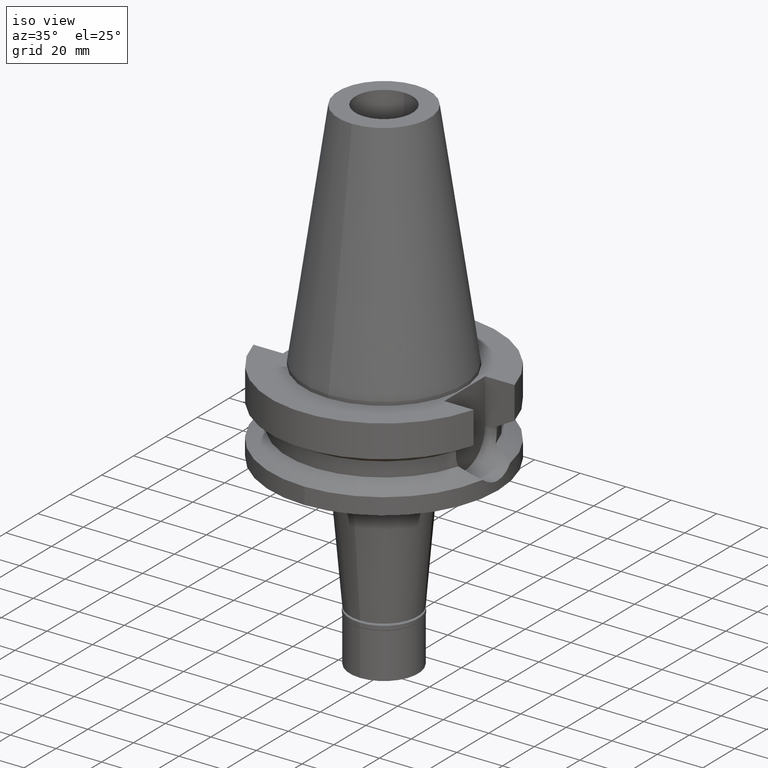
[diagram: clean part render]
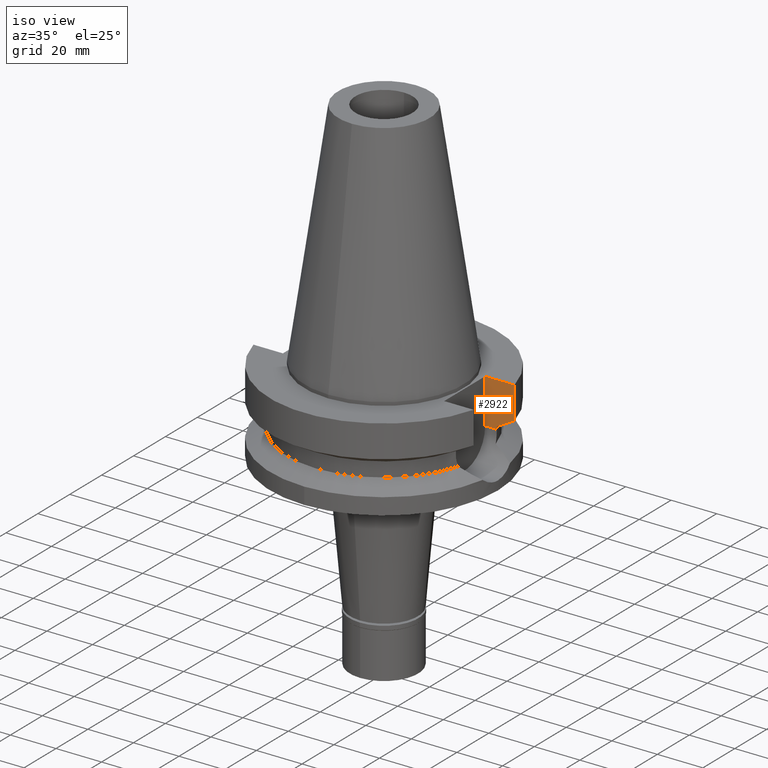
[diagram: same view with one face highlighted and labeled with its STEP entity id]
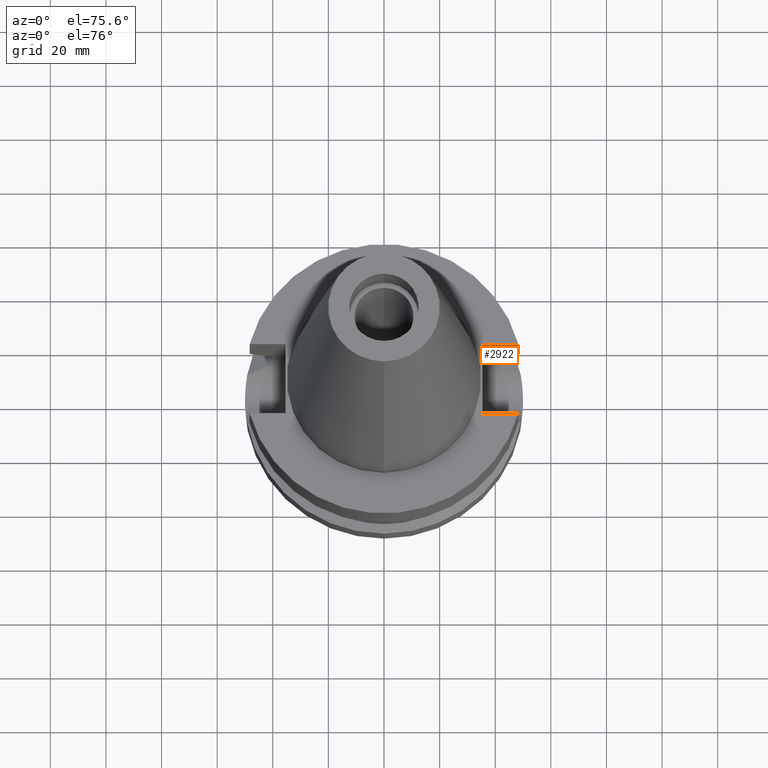
[diagram: same view with one face highlighted and labeled with its STEP entity id]
A machine part, iso view. The second image highlights one B-rep face of the part: STEP entity #2922.
A second angle (auxiliary view) of the same face is appended — the face is thin or edge-on in the first view.
In plain terms, the highlighted planar face has unit normal (0, 1, 0).
Its self-contained STEP definition (entity closure, byte-faithful):
#31 = CARTESIAN_POINT ( 'NONE',  ( 40.51083188481999997, 12.84999999999999964, -21.14999999999999858 ) ) ;
#74 = VERTEX_POINT ( 'NONE', #2476 ) ;
#91 = CARTESIAN_POINT ( 'NONE',  ( 42.90862464364228401, 12.84999310452902321, -18.67324794666005872 ) ) ;
#105 = VECTOR ( 'NONE', #1001, 1000.000000000000000 ) ;
#144 = PLANE ( 'NONE',  #1809 ) ;
#186 = CARTESIAN_POINT ( 'NONE',  ( 40.51083297732999711, 12.84999655576999977, -19.99284568674999818 ) ) ;
#316 = CARTESIAN_POINT ( 'NONE',  ( 40.51083297732999711, 12.84999655576999977, -19.99284568674999818 ) ) ;
#378 = VECTOR ( 'NONE', #1004, 1000.000000000000114 ) ;
#390 = DIRECTION ( 'NONE',  ( -0.0000000000000000000, 1.000000000000000000, 0.0000000000000000000 ) ) ;
#442 = EDGE_CURVE ( 'NONE', #599, #1636, #1991, .T. ) ;
#456 = EDGE_CURVE ( 'NONE', #1439, #3043, #2491, .T. ) ;
#502 = EDGE_CURVE ( 'NONE', #74, #599, #509, .T. ) ;
#509 = LINE ( 'NONE', #1741, #2362 ) ;
#592 = CARTESIAN_POINT ( 'NONE',  ( 40.51083188481999997, 12.84999999999999964, -21.14999999999999858 ) ) ;
#599 = VERTEX_POINT ( 'NONE', #592 ) ;
#618 = CARTESIAN_POINT ( 'NONE',  ( 35.39999999999999858, 12.84999999999999964, -1.500000000000000000 ) ) ;
#642 = ORIENTED_EDGE ( 'NONE', *, *, #442, .T. ) ;
#728 = VECTOR ( 'NONE', #3123, 1000.000000000000000 ) ;
#783 = CARTESIAN_POINT ( 'NONE',  ( 35.39999999999999858, 12.84999999999999964, -1.500000000000000000 ) ) ;
#818 = ORIENTED_EDGE ( 'NONE', *, *, #1733, .F. ) ;
#885 = CARTESIAN_POINT ( 'NONE',  ( 48.32057015392000210, 12.84999999999999964, -1.500000000000000000 ) ) ;
#912 = DIRECTION ( 'NONE',  ( 1.000000000000000000, 0.0000000000000000000, 0.0000000000000000000 ) ) ;
#1001 = DIRECTION ( 'NONE',  ( 1.000000000000000000, 0.0000000000000000000, 0.0000000000000000000 ) ) ;
#1004 = DIRECTION ( 'NONE',  ( 7.239176074897711142E-08, -2.722185896156890342E-07, 0.9999999999999603650 ) ) ;
#1024 = VECTOR ( 'NONE', #2959, 1000.000000000000114 ) ;
#1132 = CARTESIAN_POINT ( 'NONE',  ( 35.39999999999999858, 12.84999999999999964, -1.500000000000000000 ) ) ;
#1229 = ORIENTED_EDGE ( 'NONE', *, *, #456, .F. ) ;
#1439 = VERTEX_POINT ( 'NONE', #1132 ) ;
#1501 = EDGE_CURVE ( 'NONE', #1439, #74, #2862, .T. ) ;
#1505 = CARTESIAN_POINT ( 'NONE',  ( 45.51179877582139000, 12.85000770603029174, -17.22986719302744163 ) ) ;
#1636 = VERTEX_POINT ( 'NONE', #186 ) ;
#1726 = CARTESIAN_POINT ( 'NONE',  ( 48.32056912865999720, 12.85000385533999889, -15.66265769992000045 ) ) ;
#1733 = EDGE_CURVE ( 'NONE', #1936, #1636, #2619, .T. ) ;
#1741 = CARTESIAN_POINT ( 'NONE',  ( 35.39999999999999858, 12.84999999999999964, -21.14999999999999858 ) ) ;
#1809 = AXIS2_PLACEMENT_3D ( 'NONE', #2903, #390, #912 ) ;
#1936 = VERTEX_POINT ( 'NONE', #1964 ) ;
#1964 = CARTESIAN_POINT ( 'NONE',  ( 48.32056912865999720, 12.85000385533999889, -15.66265769992000045 ) ) ;
#1991 = LINE ( 'NONE', #31, #1024 ) ;
#2099 = ORIENTED_EDGE ( 'NONE', *, *, #3058, .T. ) ;
#2161 = LINE ( 'NONE', #2957, #378 ) ;
#2245 = ORIENTED_EDGE ( 'NONE', *, *, #502, .T. ) ;
#2362 = VECTOR ( 'NONE', #3158, 1000.000000000000000 ) ;
#2476 = CARTESIAN_POINT ( 'NONE',  ( 35.39999999999999858, 12.84999999999999964, -21.14999999999999858 ) ) ;
#2491 = LINE ( 'NONE', #783, #105 ) ;
#2619 = B_SPLINE_CURVE_WITH_KNOTS ( 'NONE', 3,
 ( #1726, #1505, #91, #316 ),
 .UNSPECIFIED., .F., .F.,
 ( 4, 4 ),
 ( 0.0000000000000000000, 1.000000000000000000 ),
 .UNSPECIFIED. ) ;
#2678 = ORIENTED_EDGE ( 'NONE', *, *, #1501, .T. ) ;
#2820 = EDGE_LOOP ( 'NONE', ( #818, #2099, #1229, #2678, #2245, #642 ) ) ;
#2862 = LINE ( 'NONE', #618, #728 ) ;
#2903 = CARTESIAN_POINT ( 'NONE',  ( 35.39999999999999858, 12.84999999999999964, -21.14999999999999858 ) ) ;
#2922 = ADVANCED_FACE ( 'NONE', ( #3103 ), #144, .F. ) ;
#2957 = CARTESIAN_POINT ( 'NONE',  ( 48.32056912865999720, 12.85000385533999889, -15.66265769992000045 ) ) ;
#2959 = DIRECTION ( 'NONE',  ( 9.441324481811226008E-07, -2.976468723670074156E-06, 0.9999999999951246776 ) ) ;
#3043 = VERTEX_POINT ( 'NONE', #885 ) ;
#3058 = EDGE_CURVE ( 'NONE', #1936, #3043, #2161, .T. ) ;
#3103 = FACE_OUTER_BOUND ( 'NONE', #2820, .T. ) ;
#3123 = DIRECTION ( 'NONE',  ( 0.0000000000000000000, 0.0000000000000000000, -1.000000000000000000 ) ) ;
#3158 = DIRECTION ( 'NONE',  ( 1.000000000000000000, -3.336643826789999529E-14, 0.0000000000000000000 ) ) ;